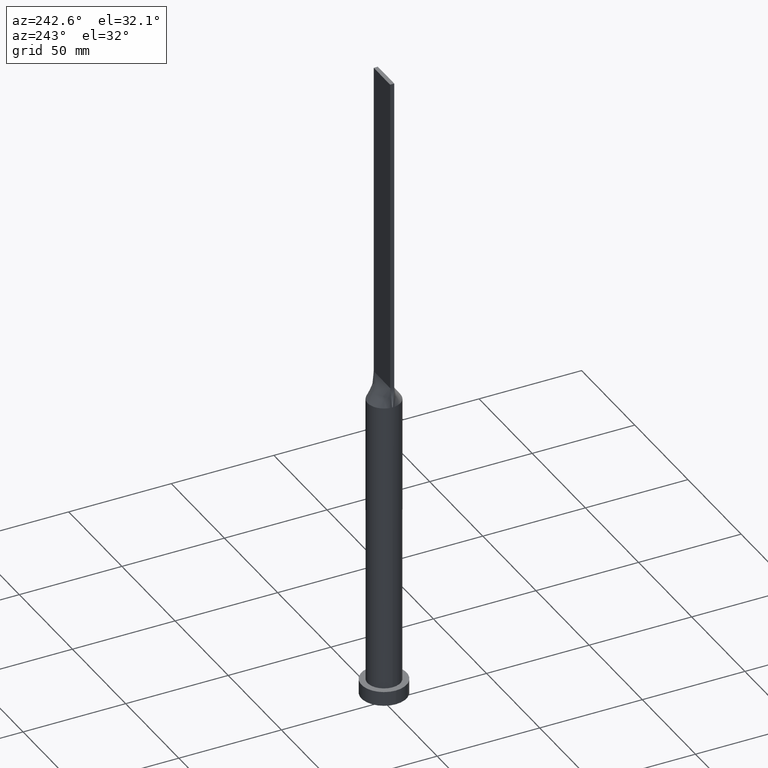
[diagram: clean part render]
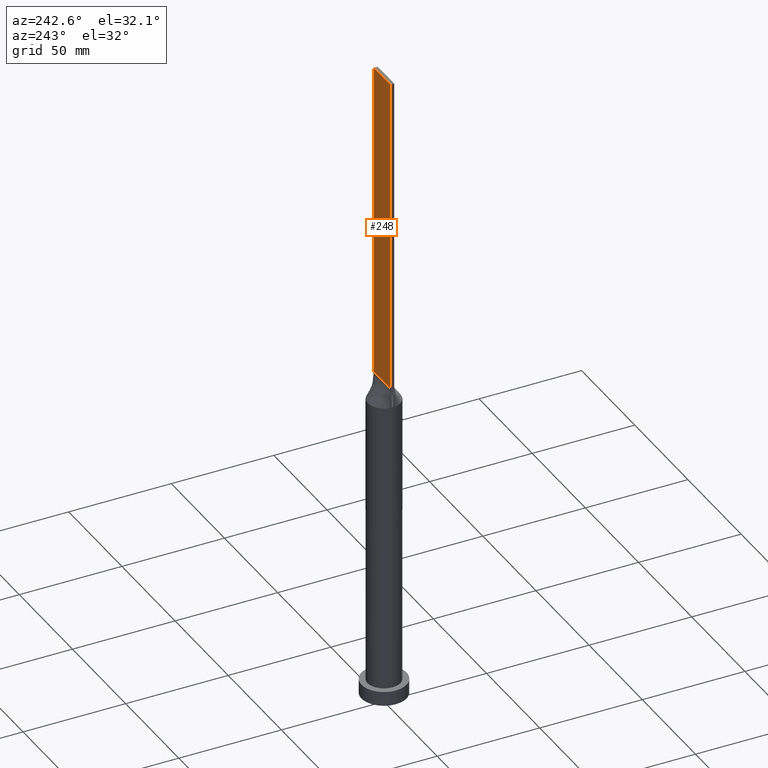
[diagram: same view with one face highlighted and labeled with its STEP entity id]
A machine part, auxiliary view. The second image highlights one B-rep face of the part: STEP entity #248.
In plain terms, the highlighted planar face has unit normal (0, -1, 0).
Its self-contained STEP definition (entity closure, byte-faithful):
#9 = CARTESIAN_POINT ( 'NONE',  ( 7.750000000000000000, 1.000000000000000000, 160.0000000000000000 ) ) ;
#50 = VECTOR ( 'NONE', #559, 1000.000000000000000 ) ;
#59 = PLANE ( 'NONE',  #264 ) ;
#82 = CARTESIAN_POINT ( 'NONE',  ( -7.750000000000000000, 1.000000000000000000, 315.0000000000000000 ) ) ;
#103 = FACE_OUTER_BOUND ( 'NONE', #384, .T. ) ;
#127 = DIRECTION ( 'NONE',  ( -0.000000000000000000, -0.000000000000000000, -1.000000000000000000 ) ) ;
#151 = EDGE_CURVE ( 'NONE', #610, #339, #472, .T. ) ;
#158 = VECTOR ( 'NONE', #381, 1000.000000000000000 ) ;
#175 = LINE ( 'NONE', #371, #50 ) ;
#186 = VERTEX_POINT ( 'NONE', #9 ) ;
#197 = DIRECTION ( 'NONE',  ( 0.000000000000000000, -0.000000000000000000, -1.000000000000000000 ) ) ;
#225 = LINE ( 'NONE', #553, #230 ) ;
#230 = VECTOR ( 'NONE', #127, 1000.000000000000000 ) ;
#232 = CARTESIAN_POINT ( 'NONE',  ( -7.750000000000000000, 1.000000000000000000, 315.0000000000000000 ) ) ;
#248 = ADVANCED_FACE ( 'NONE', ( #103 ), #59, .F. ) ;
#264 = AXIS2_PLACEMENT_3D ( 'NONE', #600, #535, #197 ) ;
#332 = VERTEX_POINT ( 'NONE', #419 ) ;
#339 = VERTEX_POINT ( 'NONE', #232 ) ;
#354 = EDGE_CURVE ( 'NONE', #610, #186, #225, .T. ) ;
#371 = CARTESIAN_POINT ( 'NONE',  ( -7.750000000000000000, 1.000000000000000000, 160.0000000000000000 ) ) ;
#381 = DIRECTION ( 'NONE',  ( -0.000000000000000000, -0.000000000000000000, -1.000000000000000000 ) ) ;
#384 = EDGE_LOOP ( 'NONE', ( #622, #462, #484, #619 ) ) ;
#419 = CARTESIAN_POINT ( 'NONE',  ( -7.750000000000000000, 1.000000000000000000, 160.0000000000000000 ) ) ;
#425 = EDGE_CURVE ( 'NONE', #339, #332, #524, .T. ) ;
#462 = ORIENTED_EDGE ( 'NONE', *, *, #425, .F. ) ;
#472 = LINE ( 'NONE', #486, #624 ) ;
#480 = CARTESIAN_POINT ( 'NONE',  ( 7.750000000000000000, 1.000000000000000000, 315.0000000000000000 ) ) ;
#484 = ORIENTED_EDGE ( 'NONE', *, *, #151, .F. ) ;
#486 = CARTESIAN_POINT ( 'NONE',  ( 7.750000000000000000, 1.000000000000000000, 315.0000000000000000 ) ) ;
#491 = DIRECTION ( 'NONE',  ( -1.000000000000000000, 0.000000000000000000, 0.000000000000000000 ) ) ;
#508 = EDGE_CURVE ( 'NONE', #186, #332, #175, .T. ) ;
#524 = LINE ( 'NONE', #82, #158 ) ;
#535 = DIRECTION ( 'NONE',  ( 0.000000000000000000, -1.000000000000000000, 0.000000000000000000 ) ) ;
#553 = CARTESIAN_POINT ( 'NONE',  ( 7.750000000000000000, 1.000000000000000000, 315.0000000000000000 ) ) ;
#559 = DIRECTION ( 'NONE',  ( -1.000000000000000000, -0.000000000000000000, -0.000000000000000000 ) ) ;
#600 = CARTESIAN_POINT ( 'NONE',  ( 7.750000000000000000, 1.000000000000000000, 315.0000000000000000 ) ) ;
#610 = VERTEX_POINT ( 'NONE', #480 ) ;
#619 = ORIENTED_EDGE ( 'NONE', *, *, #354, .T. ) ;
#622 = ORIENTED_EDGE ( 'NONE', *, *, #508, .T. ) ;
#624 = VECTOR ( 'NONE', #491, 1000.000000000000000 ) ;